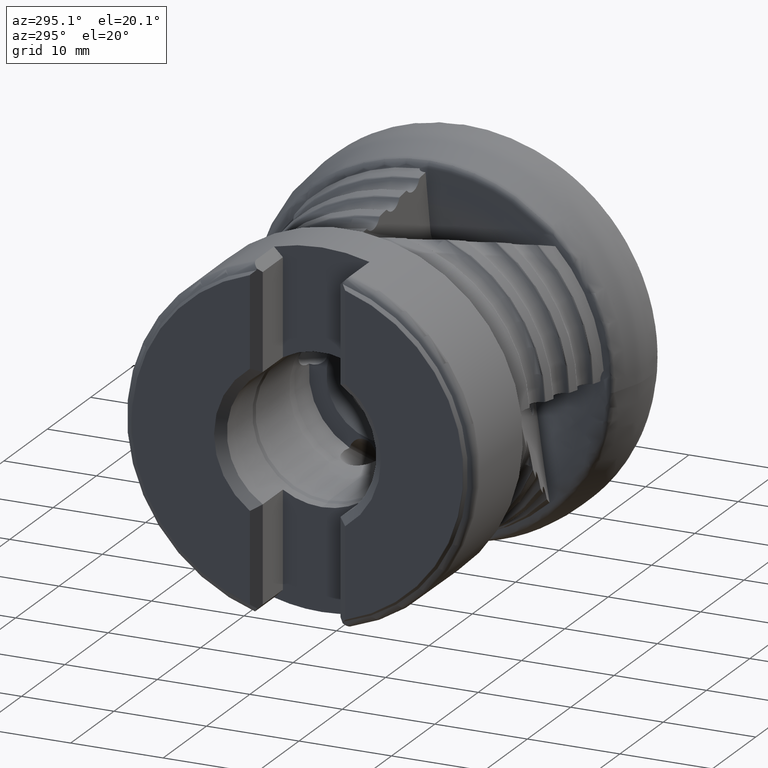
[diagram: clean part render]
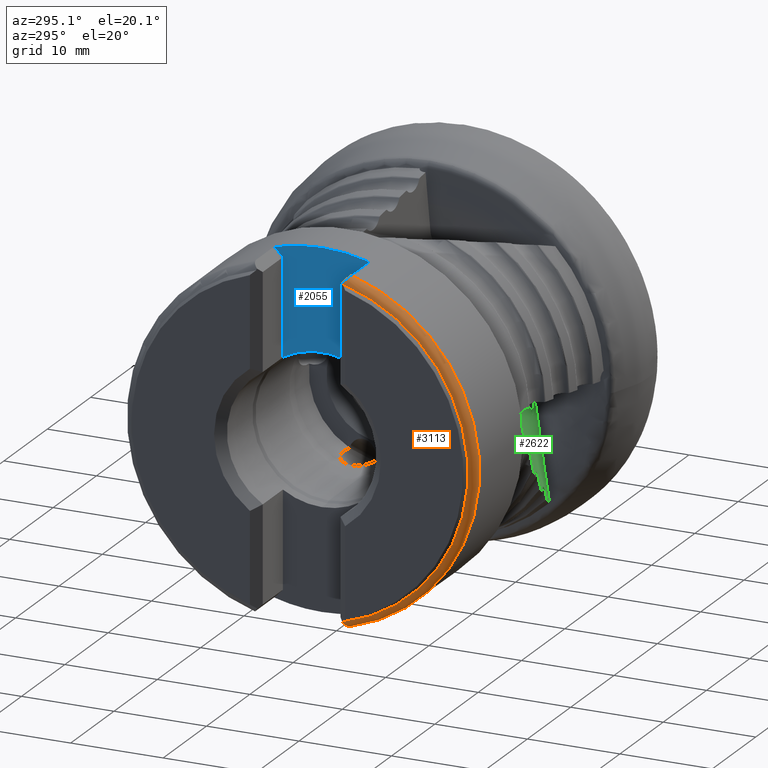
[diagram: same view with three faces highlighted in distinct colors, each labeled with its STEP entity id]
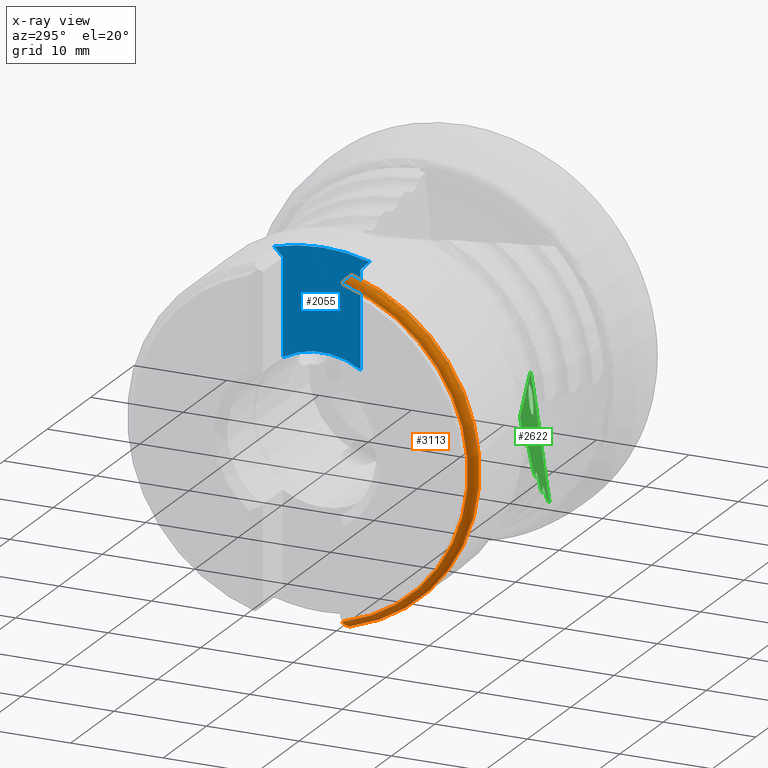
[diagram: x-ray of the same camera — body ghosted, the three highlighted faces saturated]
A machine part, auxiliary view with three faces highlighted in distinct colors.
The next image is the same camera in x-ray (body ghosted, the three faces saturated) — at least one of them is partly hidden behind the body in this view.
Their STEP definitions:

[orange] entity #3113 — the highlighted toroidal blend (fillet) surface has major radius 18 mm and minor (blend) radius 1 mm.
#468 = CARTESIAN_POINT ( 'NONE',  ( -38.05469920655795600, -5.048530082540030300, -18.18117357655765400 ) ) ;
#506 = CARTESIAN_POINT ( 'NONE',  ( -38.48385936006484100, -4.633859360064851000, -17.76317287354032000 ) ) ;
#673 = CIRCLE ( 'NONE', #7868, 18.99999999999999300 ) ;
#858 = CARTESIAN_POINT ( 'NONE',  ( -38.48385936006481200, -4.633859360064824400, 17.76317287354040200 ) ) ;
#1018 = EDGE_CURVE ( 'NONE', #3574, #2367, #3437, .T. ) ;
#1098 = CARTESIAN_POINT ( 'NONE',  ( -37.76384815131154900, -5.139883962065202800, -18.27326106620954600 ) ) ;
#1138 = CARTESIAN_POINT ( 'NONE',  ( -38.51757395159036400, -4.667573951590378000, -17.65174767903679900 ) ) ;
#1219 = VERTEX_POINT ( 'NONE', #7953 ) ;
#1249 = EDGE_CURVE ( 'NONE', #1219, #6208, #8019, .T. ) ;
#1491 = CARTESIAN_POINT ( 'NONE',  ( -38.48385936006481200, -4.633859360064824400, 17.76317287354040200 ) ) ;
#1501 = CARTESIAN_POINT ( 'NONE',  ( -38.52876197310683200, -4.678761973106848200, 17.59349912322756600 ) ) ;
#1675 = DIRECTION ( 'NONE',  ( 1.000000000000000000, -0.0000000000000000000, -0.0000000000000000000 ) ) ;
#1735 = CARTESIAN_POINT ( 'NONE',  ( -37.54999999999999000, -5.154084291463735900, -18.28757543023368000 ) ) ;
#1792 = B_SPLINE_CURVE_WITH_KNOTS ( 'NONE', 3,
 ( #7330, #2968, #3586, #7944, #4210, #468, #4836, #1098, #5469, #1735 ),
 .UNSPECIFIED., .F., .F.,
 ( 4, 2, 2, 2, 4 ),
 ( 8.673617379884034500E-019, 0.0003165693517978836800, 0.0006331387035957665000, 0.0009497080553936493700, 0.001266277407191532100 ),
 .UNSPECIFIED. ) ;
#1870 = EDGE_CURVE ( 'NONE', #3574, #6208, #6775, .T. ) ;
#2089 = DIRECTION ( 'NONE',  ( 1.000000000000000000, -0.0000000000000000000, -0.0000000000000000000 ) ) ;
#2144 = CARTESIAN_POINT ( 'NONE',  ( -37.54999999999999000, 0.0000000000000000000, 0.0000000000000000000 ) ) ;
#2220 = CARTESIAN_POINT ( 'NONE',  ( -38.29914039232142600, -4.905996709428838400, 18.03749560043177200 ) ) ;
#2367 = VERTEX_POINT ( 'NONE', #1491 ) ;
#2493 = AXIS2_PLACEMENT_3D ( 'NONE', #5399, #1675, #6039 ) ;
#2629 = B_SPLINE_CURVE_WITH_KNOTS ( 'NONE', 3,
 ( #4669, #5317, #5956, #2220, #6591, #2855 ),
 .UNSPECIFIED., .F., .F.,
 ( 4, 2, 4 ),
 ( 0.0000000000000000000, 0.0006327907338325851300, 0.001265581467665170300 ),
 .UNSPECIFIED. ) ;
#2777 = DIRECTION ( 'NONE',  ( 0.0000000000000000000, 0.0000000000000000000, -1.000000000000000000 ) ) ;
#2855 = CARTESIAN_POINT ( 'NONE',  ( -38.48385936006481200, -4.633859360064824400, 17.76317287354040200 ) ) ;
#2968 = CARTESIAN_POINT ( 'NONE',  ( -38.45024981219128100, -4.705336416484899000, -17.83522392082632600 ) ) ;
#2973 = EDGE_CURVE ( 'NONE', #4934, #3805, #673, .T. ) ;
#3058 = ORIENTED_EDGE ( 'NONE', *, *, #1018, .F. ) ;
#3068 = EDGE_CURVE ( 'NONE', #1219, #3805, #1792, .T. ) ;
#3113 = ADVANCED_FACE ( 'Fl�che5', ( #6937 ), #3612, .T. ) ;
#3222 = EDGE_CURVE ( 'NONE', #4934, #2367, #2629, .T. ) ;
#3437 = B_SPLINE_CURVE_WITH_KNOTS ( 'NONE', 3,
 ( #6468, #3983, #4605, #858 ),
 .UNSPECIFIED., .F., .F.,
 ( 4, 4 ),
 ( 0.001372400753466143000, 0.001552639090064840800 ),
 .UNSPECIFIED. ) ;
#3547 = AXIS2_PLACEMENT_3D ( 'NONE', #7078, #2089, #7693 ) ;
#3574 = VERTEX_POINT ( 'NONE', #1501 ) ;
#3586 = CARTESIAN_POINT ( 'NONE',  ( -38.40472224844603500, -4.772432079247459500, -17.90285839001865000 ) ) ;
#3612 = TOROIDAL_SURFACE ( 'NONE', #3547, 17.99999999999999600, 0.9999999999999974500 ) ;
#3805 = VERTEX_POINT ( 'NONE', #6090 ) ;
#3983 = CARTESIAN_POINT ( 'NONE',  ( -38.51749371846307900, -4.667493718463092000, 17.65216539934463200 ) ) ;
#4045 = ORIENTED_EDGE ( 'NONE', *, *, #3222, .T. ) ;
#4210 = CARTESIAN_POINT ( 'NONE',  ( -38.21677240891903400, -4.953890980019086700, -18.08577448218575500 ) ) ;
#4283 = ORIENTED_EDGE ( 'NONE', *, *, #1870, .T. ) ;
#4605 = CARTESIAN_POINT ( 'NONE',  ( -38.50218209336419800, -4.652182093364219300, 17.70894815240613300 ) ) ;
#4669 = CARTESIAN_POINT ( 'NONE',  ( -37.54999999999999000, -5.154084291463731500, 18.28757543023368400 ) ) ;
#4751 = ORIENTED_EDGE ( 'NONE', *, *, #2973, .F. ) ;
#4836 = CARTESIAN_POINT ( 'NONE',  ( -37.96101930603809600, -5.087606744889878700, -18.22056404096349900 ) ) ;
#4879 = CARTESIAN_POINT ( 'NONE',  ( -38.50242642143783200, -4.652426421437847500, -17.70822508224822300 ) ) ;
#4934 = VERTEX_POINT ( 'NONE', #5725 ) ;
#5250 = ORIENTED_EDGE ( 'NONE', *, *, #3068, .T. ) ;
#5317 = CARTESIAN_POINT ( 'NONE',  ( -37.76415761276612700, -5.154084291463736800, 18.28757543023367700 ) ) ;
#5399 = CARTESIAN_POINT ( 'NONE',  ( -38.52876197310683200, 0.0000000000000000000, 0.0000000000000000000 ) ) ;
#5469 = CARTESIAN_POINT ( 'NONE',  ( -37.65735244124207500, -5.154084291463807000, -18.28757543023375100 ) ) ;
#5507 = CARTESIAN_POINT ( 'NONE',  ( -38.52876197310683200, -4.678761973106847300, -17.59349912322756600 ) ) ;
#5691 = CARTESIAN_POINT ( 'NONE',  ( -38.52876197310683200, -4.678761973106847300, -17.59349912322756600 ) ) ;
#5725 = CARTESIAN_POINT ( 'NONE',  ( -37.54999999999999000, -5.154084291463731500, 18.28757543023368400 ) ) ;
#5956 = CARTESIAN_POINT ( 'NONE',  ( -37.97070616721687500, -5.097372263158278300, 18.23040798045639100 ) ) ;
#6039 = DIRECTION ( 'NONE',  ( 0.0000000000000000000, 0.0000000000000000000, -1.000000000000000000 ) ) ;
#6090 = CARTESIAN_POINT ( 'NONE',  ( -37.54999999999999000, -5.154084291463735900, -18.28757543023368000 ) ) ;
#6208 = VERTEX_POINT ( 'NONE', #5691 ) ;
#6468 = CARTESIAN_POINT ( 'NONE',  ( -38.52876197310683200, -4.678761973106848200, 17.59349912322756600 ) ) ;
#6505 = DIRECTION ( 'NONE',  ( 1.000000000000000000, -0.0000000000000000000, -0.0000000000000000000 ) ) ;
#6591 = CARTESIAN_POINT ( 'NONE',  ( -38.41673218027916200, -4.776617996238919700, 17.90707792168646900 ) ) ;
#6775 = CIRCLE ( 'NONE', #2493, 18.20499999999999500 ) ;
#6937 = FACE_OUTER_BOUND ( 'NONE', #6992, .T. ) ;
#6992 = EDGE_LOOP ( 'NONE', ( #4751, #4045, #3058, #4283, #8036, #5250 ) ) ;
#7078 = CARTESIAN_POINT ( 'NONE',  ( -37.54999999999999000, 0.0000000000000000000, 0.0000000000000000000 ) ) ;
#7330 = CARTESIAN_POINT ( 'NONE',  ( -38.48385936006484100, -4.633859360064851000, -17.76317287354032000 ) ) ;
#7693 = DIRECTION ( 'NONE',  ( 0.0000000000000000000, 0.0000000000000000000, -1.000000000000000000 ) ) ;
#7868 = AXIS2_PLACEMENT_3D ( 'NONE', #2144, #6505, #2777 ) ;
#7944 = CARTESIAN_POINT ( 'NONE',  ( -38.28788730391736600, -4.897146027994828000, -18.02857384429833600 ) ) ;
#7953 = CARTESIAN_POINT ( 'NONE',  ( -38.48385936006484100, -4.633859360064851000, -17.76317287354032000 ) ) ;
#8019 = B_SPLINE_CURVE_WITH_KNOTS ( 'NONE', 3,
 ( #506, #4879, #1138, #5507 ),
 .UNSPECIFIED., .F., .F.,
 ( 4, 4 ),
 ( 0.0009228124973433809600, 0.001103267274029202500 ),
 .UNSPECIFIED. ) ;
#8036 = ORIENTED_EDGE ( 'NONE', *, *, #1249, .F. ) ;

[blue] entity #2055 — the highlighted planar face has unit normal (1, 0, 0).
#7 = VECTOR ( 'NONE', #1830, 1000.000000000000000 ) ;
#63 = VERTEX_POINT ( 'NONE', #7376 ) ;
#170 = CIRCLE ( 'NONE', #5270, 8.074999999999994000 ) ;
#342 = VERTEX_POINT ( 'NONE', #1288 ) ;
#616 = PLANE ( 'NONE',  #1924 ) ;
#634 = EDGE_LOOP ( 'NONE', ( #3234, #7002, #6773, #3827, #3407, #5529 ) ) ;
#737 = VECTOR ( 'NONE', #6998, 1000.000000000000000 ) ;
#867 = VECTOR ( 'NONE', #5103, 1000.000000000000000 ) ;
#1189 = CARTESIAN_POINT ( 'NONE',  ( -33.39999999999999900, 4.199999999999995700, -35.00000000000000000 ) ) ;
#1252 = DIRECTION ( 'NONE',  ( 0.0000000000000000000, 0.0000000000000000000, -1.000000000000000000 ) ) ;
#1288 = CARTESIAN_POINT ( 'NONE',  ( -33.39999999999999900, -4.200000000000003700, 17.32582944009231000 ) ) ;
#1297 = EDGE_CURVE ( 'NONE', #5306, #5394, #2974, .T. ) ;
#1336 = CARTESIAN_POINT ( 'NONE',  ( -33.39999999999999900, -4.200000000000003700, -35.00000000000000000 ) ) ;
#1344 = CIRCLE ( 'NONE', #3477, 18.99999999999999600 ) ;
#1463 = DIRECTION ( 'NONE',  ( -1.000000000000000000, -0.0000000000000000000, -0.0000000000000000000 ) ) ;
#1710 = DIRECTION ( 'NONE',  ( -0.0000000000000000000, -0.7042733211068721300, 0.7099289324834540100 ) ) ;
#1814 = DIRECTION ( 'NONE',  ( -1.000000000000000000, -0.0000000000000000000, -0.0000000000000000000 ) ) ;
#1830 = DIRECTION ( 'NONE',  ( -0.0000000000000000000, -0.0000000000000000000, 1.000000000000000000 ) ) ;
#1924 = AXIS2_PLACEMENT_3D ( 'NONE', #4349, #4989, #1252 ) ;
#2055 = ADVANCED_FACE ( 'NONE', ( #2081 ), #616, .F. ) ;
#2081 = FACE_OUTER_BOUND ( 'NONE', #634, .T. ) ;
#2903 = CARTESIAN_POINT ( 'NONE',  ( -33.39999999999999900, 4.199999999999995700, 17.32582944009231000 ) ) ;
#2974 = LINE ( 'NONE', #1189, #7 ) ;
#3234 = ORIENTED_EDGE ( 'NONE', *, *, #6622, .T. ) ;
#3407 = ORIENTED_EDGE ( 'NONE', *, *, #4477, .T. ) ;
#3477 = AXIS2_PLACEMENT_3D ( 'NONE', #5544, #1814, #6175 ) ;
#3827 = ORIENTED_EDGE ( 'NONE', *, *, #5000, .F. ) ;
#4027 = VERTEX_POINT ( 'NONE', #6318 ) ;
#4216 = CARTESIAN_POINT ( 'NONE',  ( -33.39999999999999900, 4.199999999999995700, 6.896783670668519900 ) ) ;
#4266 = LINE ( 'NONE', #5109, #737 ) ;
#4349 = CARTESIAN_POINT ( 'NONE',  ( -33.39999999999999900, 4.199999999999995700, -35.00000000000000000 ) ) ;
#4477 = EDGE_CURVE ( 'NONE', #4027, #342, #6068, .T. ) ;
#4657 = LINE ( 'NONE', #4808, #6133 ) ;
#4808 = CARTESIAN_POINT ( 'NONE',  ( -33.39999999999999900, 26.12848552553696300, -13.24620659720213900 ) ) ;
#4989 = DIRECTION ( 'NONE',  ( 1.000000000000000000, 0.0000000000000000000, 0.0000000000000000000 ) ) ;
#5000 = EDGE_CURVE ( 'NONE', #4027, #5306, #170, .T. ) ;
#5103 = DIRECTION ( 'NONE',  ( -0.0000000000000000000, -0.0000000000000000000, 1.000000000000000000 ) ) ;
#5109 = CARTESIAN_POINT ( 'NONE',  ( -33.39999999999999900, -21.96207787462457600, -9.046340938150320800 ) ) ;
#5199 = CARTESIAN_POINT ( 'NONE',  ( -33.39999999999999900, 0.0000000000000000000, 0.0000000000000000000 ) ) ;
#5270 = AXIS2_PLACEMENT_3D ( 'NONE', #5199, #1463, #5826 ) ;
#5306 = VERTEX_POINT ( 'NONE', #4216 ) ;
#5394 = VERTEX_POINT ( 'NONE', #2903 ) ;
#5529 = ORIENTED_EDGE ( 'NONE', *, *, #7668, .T. ) ;
#5544 = CARTESIAN_POINT ( 'NONE',  ( -33.39999999999999900, 0.0000000000000000000, 0.0000000000000000000 ) ) ;
#5826 = DIRECTION ( 'NONE',  ( 0.0000000000000000000, 0.0000000000000000000, -1.000000000000000000 ) ) ;
#5918 = VERTEX_POINT ( 'NONE', #6024 ) ;
#6024 = CARTESIAN_POINT ( 'NONE',  ( -33.39999999999999900, 5.154084291463730600, 18.28757543023368400 ) ) ;
#6068 = LINE ( 'NONE', #1336, #867 ) ;
#6133 = VECTOR ( 'NONE', #1710, 1000.000000000000000 ) ;
#6175 = DIRECTION ( 'NONE',  ( 0.0000000000000000000, 2.664535259100375700E-015, -1.000000000000000000 ) ) ;
#6318 = CARTESIAN_POINT ( 'NONE',  ( -33.39999999999999900, -4.200000000000003700, 6.896783670668524400 ) ) ;
#6622 = EDGE_CURVE ( 'NONE', #63, #5918, #1344, .T. ) ;
#6773 = ORIENTED_EDGE ( 'NONE', *, *, #1297, .F. ) ;
#6998 = DIRECTION ( 'NONE',  ( 0.0000000000000000000, -0.7042733211068721300, -0.7099289324834540100 ) ) ;
#7002 = ORIENTED_EDGE ( 'NONE', *, *, #7876, .T. ) ;
#7376 = CARTESIAN_POINT ( 'NONE',  ( -33.39999999999999900, -5.154084291463734100, 18.28757543023368400 ) ) ;
#7668 = EDGE_CURVE ( 'NONE', #342, #63, #4657, .T. ) ;
#7876 = EDGE_CURVE ( 'NONE', #5918, #5394, #4266, .T. ) ;

[green] entity #2622 — the highlighted planar face has unit normal (-0.3701, 0.9171, -0.1482).
#26 = VERTEX_POINT ( 'NONE', #4314 ) ;
#40 = CARTESIAN_POINT ( 'NONE',  ( -13.06158693701320800, -12.92268450524517800, -1.970968657809498300 ) ) ;
#41 = CARTESIAN_POINT ( 'NONE',  ( -14.66772490443805500, -14.86115842577532400, -9.955975114109019600 ) ) ;
#49 = ORIENTED_EDGE ( 'NONE', *, *, #4861, .T. ) ;
#84 = CARTESIAN_POINT ( 'NONE',  ( -8.288258915872159300, -11.84682265361578900, -7.234380996124214900 ) ) ;
#105 = CARTESIAN_POINT ( 'NONE',  ( -8.816708944776047800, -12.89553216135156300, -12.40456871845629500 ) ) ;
#118 = CARTESIAN_POINT ( 'NONE',  ( -12.91318140703387300, -14.29622951480864000, -10.84187413756024100 ) ) ;
#136 = B_SPLINE_CURVE_WITH_KNOTS ( 'NONE', 3,
 ( #7932, #3576, #5484, #1755, #6116, #2381 ),
 .UNSPECIFIED., .F., .F.,
 ( 4, 2, 4 ),
 ( 1.009385445317449800E-006, 0.0001790251860066521100, 0.0003570409865679867400 ),
 .UNSPECIFIED. ) ;
#142 = CARTESIAN_POINT ( 'NONE',  ( -13.22327839975838000, -14.45316567490736400, -11.03861145808201600 ) ) ;
#195 = CARTESIAN_POINT ( 'NONE',  ( -9.400780168825525300, -13.29260878131742600, -13.40317490013187300 ) ) ;
#206 = CARTESIAN_POINT ( 'NONE',  ( -21.29843594468996000, -16.46248450411902600, -3.305591381325564200 ) ) ;
#246 = CARTESIAN_POINT ( 'NONE',  ( -20.81635518232234000, -16.21085633468090100, -2.952378746493181400 ) ) ;
#288 =( BOUNDED_CURVE ( )  B_SPLINE_CURVE ( 3, ( #3951, #7681, #195, #4574 ),
 .UNSPECIFIED., .F., .F. ) 
 B_SPLINE_CURVE_WITH_KNOTS ( ( 4, 4 ),
 ( 3.735590182268710100, 3.776112978296926000 ),
 .UNSPECIFIED. ) 
 CURVE ( )  GEOMETRIC_REPRESENTATION_ITEM ( )  RATIONAL_B_SPLINE_CURVE ( ( 1.000000000000000000, 0.9998631632648338200, 0.9998631632648338200, 1.000000000000000000 ) ) 
 REPRESENTATION_ITEM ( '' )  );
#339 = EDGE_CURVE ( 'NONE', #7672, #7672, #1480, .T. ) ;
#380 = CARTESIAN_POINT ( 'NONE',  ( -19.13913375411725700, -15.84146325940005800, -4.855249536368962300 ) ) ;
#391 = EDGE_CURVE ( 'NONE', #8012, #1737, #6702, .T. ) ;
#400 = DIRECTION ( 'NONE',  ( -0.9289711258367763200, -0.3644075289595948300, 0.06495998921732015800 ) ) ;
#410 = CARTESIAN_POINT ( 'NONE',  ( -19.90765923399761700, -15.91690120136515500, -3.402699866112887800 ) ) ;
#472 = B_SPLINE_CURVE_WITH_KNOTS ( 'NONE', 3,
 ( #4416, #41, #678, #5052, #1315, #5685 ),
 .UNSPECIFIED., .F., .F.,
 ( 4, 2, 4 ),
 ( 7.660069956780811300E-007, 0.0001434554477277806500, 0.0002861448884598832500 ),
 .UNSPECIFIED. ) ;
#539 = ORIENTED_EDGE ( 'NONE', *, *, #4907, .T. ) ;
#551 = CARTESIAN_POINT ( 'NONE',  ( -17.30936546724134900, -15.59704177608160300, -7.912501698183001900 ) ) ;
#572 = B_SPLINE_CURVE_WITH_KNOTS ( 'NONE', 3,
 ( #3848, #7580, #4465, #724, #5101, #1365, #5736, #2001, #6354, #2623, #6993, #3252, #7606, #3874, #118, #4492, #749, #5126 ),
 .UNSPECIFIED., .F., .F.,
 ( 4, 2, 2, 2, 2, 2, 2, 2, 4 ),
 ( 6.599408178951992300E-007, 0.0008750545435202486700, 0.001312251844871429100, 0.001749449146222609900, 0.002186646447573790100, 0.002623843748924970500, 0.003061041050276151300, 0.003279639700951744600, 0.003498238351627337400 ),
 .UNSPECIFIED. ) ;
#638 = CARTESIAN_POINT ( 'NONE',  ( -17.19709416919315000, -15.55931499123076000, -7.959426277079478100 ) ) ;
#678 = CARTESIAN_POINT ( 'NONE',  ( -14.64960026260332200, -14.86095276633301400, -9.999968890153230200 ) ) ;
#684 = CARTESIAN_POINT ( 'NONE',  ( -20.63402473574291900, -16.12792108531301600, -2.894501755574767600 ) ) ;
#707 = CARTESIAN_POINT ( 'NONE',  ( -15.17087802722921800, -14.86645942450824100, -8.732149664370126600 ) ) ;
#713 = CARTESIAN_POINT ( 'NONE',  ( -8.488526323792669400, -12.08101510600923800, -8.183523955575198600 ) ) ;
#724 = CARTESIAN_POINT ( 'NONE',  ( -11.13168738374282400, -13.70598606121352800, -11.63842194671495100 ) ) ;
#734 = CARTESIAN_POINT ( 'NONE',  ( -8.810491812418382200, -13.10623262769537700, -13.72402781966980900 ) ) ;
#749 = CARTESIAN_POINT ( 'NONE',  ( -13.08132523932028400, -14.38244314028242200, -10.95547078414291400 ) ) ;
#777 = CARTESIAN_POINT ( 'NONE',  ( -13.19131643344670500, -14.43999923359445200, -11.03695558779214300 ) ) ;
#803 = ORIENTED_EDGE ( 'NONE', *, *, #339, .F. ) ;
#810 = VERTEX_POINT ( 'NONE', #3820 ) ;
#884 = CARTESIAN_POINT ( 'NONE',  ( -20.34583694661682100, -16.02411487756086600, -2.971843646757779600 ) ) ;
#915 = EDGE_CURVE ( 'NONE', #5622, #4445, #7782, .T. ) ;
#943 = CARTESIAN_POINT ( 'NONE',  ( -8.810491812418382200, -13.10623262769537700, -13.72402781966980900 ) ) ;
#984 = CARTESIAN_POINT ( 'NONE',  ( -20.03731116525342800, -15.94339270905019400, -3.242836799181285600 ) ) ;
#1037 = CARTESIAN_POINT ( 'NONE',  ( -23.01391749765082300, -16.55933656196130200, 0.3794700127191610300 ) ) ;
#1090 = DIRECTION ( 'NONE',  ( 0.005572156574991161400, 0.1617080558032535400, 0.9868229100296747000 ) ) ;
#1160 = VERTEX_POINT ( 'NONE', #6063 ) ;
#1193 = LINE ( 'NONE', #1037, #5981 ) ;
#1209 = ORIENTED_EDGE ( 'NONE', *, *, #3457, .F. ) ;
#1214 = ORIENTED_EDGE ( 'NONE', *, *, #1564, .T. ) ;
#1278 = CARTESIAN_POINT ( 'NONE',  ( -17.17436061507838800, -15.54929042406291700, -7.954166001889202400 ) ) ;
#1303 = CARTESIAN_POINT ( 'NONE',  ( -14.53201490601522200, -14.83732247978159400, -10.14740237023979900 ) ) ;
#1315 = CARTESIAN_POINT ( 'NONE',  ( -14.57033120078480900, -14.84827763673981900, -10.11950357058552900 ) ) ;
#1342 = CARTESIAN_POINT ( 'NONE',  ( -15.66597922763245200, -14.96449941607279800, -8.102354483617869400 ) ) ;
#1349 = CARTESIAN_POINT ( 'NONE',  ( -8.590104201229129500, -12.19864741339509000, -8.657806163384423200 ) ) ;
#1365 = CARTESIAN_POINT ( 'NONE',  ( -11.41068289237418700, -13.76430323911134800, -11.30252645579653900 ) ) ;
#1373 = VERTEX_POINT ( 'NONE', #6877 ) ;
#1416 = CARTESIAN_POINT ( 'NONE',  ( -13.16111581070185100, -14.42598205127919200, -11.02563588199462400 ) ) ;
#1462 = CARTESIAN_POINT ( 'NONE',  ( -10.53201490601522600, -13.64395386577984200, -12.75222143156462100 ) ) ;
#1479 = CARTESIAN_POINT ( 'NONE',  ( -21.25858763557420900, -16.45395380356756100, -3.352320290677335700 ) ) ;
#1480 =( BOUNDED_CURVE ( )  B_SPLINE_CURVE ( 3, ( #4387, #1923, #6913, #3169, #7530, #3796, #40 ),
 .UNSPECIFIED., .T., .F. ) 
 B_SPLINE_CURVE_WITH_KNOTS ( ( 4, 3, 4 ),
 ( 0.0000000000000000000, 3.141592653589793100, 6.283185307179586200 ),
 .UNSPECIFIED. ) 
 CURVE ( )  GEOMETRIC_REPRESENTATION_ITEM ( )  RATIONAL_B_SPLINE_CURVE ( ( 1.000000000000000000, 0.3333333333333333700, 0.3333333333333333700, 1.000000000000000000, 0.3333333333333333700, 0.3333333333333333700, 1.000000000000000000 ) ) 
 REPRESENTATION_ITEM ( '' )  );
#1564 = EDGE_CURVE ( 'NONE', #4337, #2245, #1637, .T. ) ;
#1637 = B_SPLINE_CURVE_WITH_KNOTS ( 'NONE', 3,
 ( #5198, #7059, #4562, #1462 ),
 .UNSPECIFIED., .F., .F.,
 ( 4, 4 ),
 ( 6.616937307723633600E-007, 0.0002552861046104720500 ),
 .UNSPECIFIED. ) ;
#1663 = B_SPLINE_CURVE_WITH_KNOTS ( 'NONE', 3,
 ( #5056, #2578, #4446, #707, #5085, #1342, #5717, #1980, #6336, #2602, #6974, #3229, #7586, #3858 ),
 .UNSPECIFIED., .F., .F.,
 ( 4, 2, 2, 2, 2, 2, 4 ),
 ( 7.641823690654898600E-007, 0.0009570944499425659700, 0.001913424717516066500, 0.002391589851302815100, 0.002869754985089563300, 0.003347920118876311900, 0.003826085252663060500 ),
 .UNSPECIFIED. ) ;
#1737 = VERTEX_POINT ( 'NONE', #5353 ) ;
#1745 = PLANE ( 'NONE',  #7204 ) ;
#1755 = CARTESIAN_POINT ( 'NONE',  ( -18.60408194009716000, -15.91598928009826600, -6.652756370502071800 ) ) ;
#1876 = EDGE_CURVE ( 'NONE', #6716, #4619, #1193, .T. ) ;
#1913 = CARTESIAN_POINT ( 'NONE',  ( -17.15371709882603200, -15.53911674669765100, -7.942763055103084100 ) ) ;
#1923 = CARTESIAN_POINT ( 'NONE',  ( -13.41614850462555700, -13.53680315476099900, -4.885954829147042500 ) ) ;
#1980 = CARTESIAN_POINT ( 'NONE',  ( -16.03359010365454300, -15.06469262381848800, -7.804293222382667300 ) ) ;
#1988 = CARTESIAN_POINT ( 'NONE',  ( -8.725860170575972000, -12.38225093524192900, -9.454994762668709600 ) ) ;
#2001 = CARTESIAN_POINT ( 'NONE',  ( -11.73793910005533400, -13.85068999614679600, -11.01980946429039000 ) ) ;
#2024 = CARTESIAN_POINT ( 'NONE',  ( -13.27426063369093400, -14.47166853765687500, -11.02578872658311200 ) ) ;
#2052 = CARTESIAN_POINT ( 'NONE',  ( -13.13975833526404800, -14.41524855921950300, -11.01255161200694100 ) ) ;
#2113 = CARTESIAN_POINT ( 'NONE',  ( -21.20542192611806300, -16.43686889538136200, -3.379371370490081600 ) ) ;
#2245 = VERTEX_POINT ( 'NONE', #6347 ) ;
#2307 = CARTESIAN_POINT ( 'NONE',  ( -21.13077898559610900, -16.39758433423874400, -3.322678287010757200 ) ) ;
#2381 = CARTESIAN_POINT ( 'NONE',  ( -18.53201490601521700, -15.90244356617263200, -6.748916239662492000 ) ) ;
#2457 = CARTESIAN_POINT ( 'NONE',  ( -17.30936546724134900, -15.59704177608160300, -7.912501698183001900 ) ) ;
#2482 = CARTESIAN_POINT ( 'NONE',  ( -13.30936546724134200, -14.48249617549296000, -11.00512143068432500 ) ) ;
#2488 = CARTESIAN_POINT ( 'NONE',  ( -8.011410125360754400, -10.67430258438759000, -0.6696074989837840200 ) ) ;
#2534 = CARTESIAN_POINT ( 'NONE',  ( -17.13758421212001100, -15.53056543341423200, -7.930134848504502900 ) ) ;
#2559 = CARTESIAN_POINT ( 'NONE',  ( -13.72949393109026100, -14.60611917307294900, -10.72089343970425000 ) ) ;
#2574 = CARTESIAN_POINT ( 'NONE',  ( -13.13077898559615900, -14.41020738652653500, -11.00378006388950200 ) ) ;
#2578 = CARTESIAN_POINT ( 'NONE',  ( -14.76363208000690700, -14.84192507260523200, -9.597419096264353300 ) ) ;
#2602 = CARTESIAN_POINT ( 'NONE',  ( -16.46489362997587200, -15.21197692166836500, -7.638584671715032700 ) ) ;
#2608 = CARTESIAN_POINT ( 'NONE',  ( -8.807444171688482400, -12.57238777873546500, -10.42791033467685400 ) ) ;
#2622 = ADVANCED_FACE ( 'NONE', ( #5092, #4900 ), #1745, .F. ) ;
#2623 = CARTESIAN_POINT ( 'NONE',  ( -12.11173638994503300, -13.96877111651907700, -10.81699791773267600 ) ) ;
#2672 = CARTESIAN_POINT ( 'NONE',  ( -21.02838886468428500, -16.32911191591469100, -3.154653417531426500 ) ) ;
#2683 = CARTESIAN_POINT ( 'NONE',  ( -19.29448734747943900, -15.84304427004149000, -4.477036240860520000 ) ) ;
#2694 = EDGE_CURVE ( 'NONE', #6472, #26, #2996, .T. ) ;
#2745 = CARTESIAN_POINT ( 'NONE',  ( -21.15222061911526200, -16.41163614290324100, -3.356087960936150200 ) ) ;
#2756 = ORIENTED_EDGE ( 'NONE', *, *, #6897, .T. ) ;
#2933 = LINE ( 'NONE', #3577, #6054 ) ;
#2978 = VERTEX_POINT ( 'NONE', #4620 ) ;
#2996 =( BOUNDED_CURVE ( )  B_SPLINE_CURVE ( 3, ( #7998, #3667, #4295, #551 ),
 .UNSPECIFIED., .F., .F. ) 
 B_SPLINE_CURVE_WITH_KNOTS ( ( 4, 4 ),
 ( 3.497770625844566000, 3.542646316126685200 ),
 .UNSPECIFIED. ) 
 CURVE ( )  GEOMETRIC_REPRESENTATION_ITEM ( )  RATIONAL_B_SPLINE_CURVE ( ( 1.000000000000000000, 0.9998321880758249700, 0.9998321880758249700, 1.000000000000000000 ) ) 
 REPRESENTATION_ITEM ( '' )  );
#3005 = DIRECTION ( 'NONE',  ( -0.9273309213448917000, -0.3742423844484136200, 0.0000000000000000000 ) ) ;
#3114 = CARTESIAN_POINT ( 'NONE',  ( -22.88578160818059000, -16.50907269309149700, 0.3705098784729798900 ) ) ;
#3124 = EDGE_CURVE ( 'NONE', #2978, #1737, #5528, .T. ) ;
#3131 = CARTESIAN_POINT ( 'NONE',  ( -17.26227178173996500, -15.58332128329708500, -7.945208699856436900 ) ) ;
#3142 = CARTESIAN_POINT ( 'NONE',  ( -22.06691627777239300, -16.57256498748131400, -2.067541790115719800 ) ) ;
#3147 = EDGE_LOOP ( 'NONE', ( #3479, #4146, #5357, #4867, #4833, #7687, #7926, #7931, #49, #5681, #3247, #539, #6554, #1209, #1214, #2756 ) ) ;
#3169 = CARTESIAN_POINT ( 'NONE',  ( -9.513363365466707600, -11.60531623801099600, -2.680091793034177000 ) ) ;
#3179 = CARTESIAN_POINT ( 'NONE',  ( -8.041309942292009800, -11.54201712179437100, -5.964832777807425000 ) ) ;
#3206 = CARTESIAN_POINT ( 'NONE',  ( -8.162586827985055700, -11.69361013992178800, -6.600084252255650900 ) ) ;
#3229 = CARTESIAN_POINT ( 'NONE',  ( -16.90559743029128700, -15.40277810294848500, -7.718705514963848400 ) ) ;
#3236 = CARTESIAN_POINT ( 'NONE',  ( -8.814410831328677500, -12.68154224647070500, -11.08601960803499900 ) ) ;
#3247 = ORIENTED_EDGE ( 'NONE', *, *, #4419, .T. ) ;
#3252 = CARTESIAN_POINT ( 'NONE',  ( -12.52008004756391600, -14.12084086135246600, -10.73824692446667400 ) ) ;
#3365 = CARTESIAN_POINT ( 'NONE',  ( -21.13077898559610900, -16.39758433423874400, -3.322678287010757200 ) ) ;
#3395 = EDGE_CURVE ( 'NONE', #4619, #2978, #3484, .T. ) ;
#3457 = EDGE_CURVE ( 'NONE', #4337, #4445, #572, .T. ) ;
#3479 = ORIENTED_EDGE ( 'NONE', *, *, #7417, .F. ) ;
#3484 =( BOUNDED_CURVE ( )  B_SPLINE_CURVE ( 3, ( #3114, #6862, #3142, #7501 ),
 .UNSPECIFIED., .F., .F. ) 
 B_SPLINE_CURVE_WITH_KNOTS ( ( 4, 4 ),
 ( 3.227657340640096800, 3.366057461264809500 ),
 .UNSPECIFIED. ) 
 CURVE ( )  GEOMETRIC_REPRESENTATION_ITEM ( )  RATIONAL_B_SPLINE_CURVE ( ( 1.000000000000000000, 0.9984044207590608800, 0.9984044207590608800, 1.000000000000000000 ) ) 
 REPRESENTATION_ITEM ( '' )  );
#3557 = CARTESIAN_POINT ( 'NONE',  ( -21.08270250875885000, -16.36417712487318400, -3.236007464220100900 ) ) ;
#3576 = CARTESIAN_POINT ( 'NONE',  ( -18.66838651152312400, -15.91511046310041500, -6.486716320795836500 ) ) ;
#3577 = CARTESIAN_POINT ( 'NONE',  ( -8.008089806552384000, -10.57794450616011500, -0.08158262484271523700 ) ) ;
#3667 = CARTESIAN_POINT ( 'NONE',  ( -18.14748850825838700, -15.81021528268055600, -7.138515603693987200 ) ) ;
#3755 = CARTESIAN_POINT ( 'NONE',  ( -17.23506606374748900, -15.57415713873224300, -7.956442481658760900 ) ) ;
#3796 = CARTESIAN_POINT ( 'NONE',  ( -12.70702536940086200, -12.30856585572935700, 0.9440175135280453000 ) ) ;
#3806 = EDGE_CURVE ( 'NONE', #810, #6716, #2933, .T. ) ;
#3820 = CARTESIAN_POINT ( 'NONE',  ( -8.041309942292009800, -11.54201712179437100, -5.964832777807425000 ) ) ;
#3848 = CARTESIAN_POINT ( 'NONE',  ( -10.68017554922010200, -13.67148018251402600, -12.55253660803584600 ) ) ;
#3858 = CARTESIAN_POINT ( 'NONE',  ( -17.13077898559625100, -15.52657029930583700, -7.922406870538840600 ) ) ;
#3862 = CARTESIAN_POINT ( 'NONE',  ( -8.815266109469424900, -12.76178604638697300, -11.58047682929561100 ) ) ;
#3874 = CARTESIAN_POINT ( 'NONE',  ( -12.85071666683739300, -14.26626950100696900, -10.81247134015593200 ) ) ;
#3900 = CARTESIAN_POINT ( 'NONE',  ( -13.23970001783192000, -14.45941331515073400, -11.03626214387359300 ) ) ;
#3911 = CARTESIAN_POINT ( 'NONE',  ( -19.67636646581144800, -15.87888885815114500, -3.745114805095091100 ) ) ;
#3951 = CARTESIAN_POINT ( 'NONE',  ( -10.53201490601522600, -13.64395386577984200, -12.75222143156462100 ) ) ;
#3964 = CARTESIAN_POINT ( 'NONE',  ( -14.53201490601522200, -14.83732247978159400, -10.14740237023979900 ) ) ;
#4146 = ORIENTED_EDGE ( 'NONE', *, *, #3806, .T. ) ;
#4260 =( BOUNDED_CURVE ( )  B_SPLINE_CURVE ( 3, ( #1303, #5038, #2559, #6931 ),
 .UNSPECIFIED., .F., .F. ) 
 B_SPLINE_CURVE_WITH_KNOTS ( ( 4, 4 ),
 ( 3.630230336012595600, 3.664467858714360600 ),
 .UNSPECIFIED. ) 
 CURVE ( )  GEOMETRIC_REPRESENTATION_ITEM ( )  RATIONAL_B_SPLINE_CURVE ( ( 1.000000000000000000, 0.9999023183887879600, 0.9999023183887879600, 1.000000000000000000 ) ) 
 REPRESENTATION_ITEM ( '' )  );
#4295 = CARTESIAN_POINT ( 'NONE',  ( -17.73987029213658700, -15.70839759976226300, -7.526442521963415900 ) ) ;
#4304 = B_SPLINE_CURVE_WITH_KNOTS ( 'NONE', 3,
 ( #3179, #3206, #84, #4451, #713, #5089, #1349, #5722, #1988, #6342, #2608, #6976, #3236, #7589, #3862, #105, #4478, #734 ),
 .UNSPECIFIED., .F., .F.,
 ( 4, 2, 2, 2, 2, 2, 2, 2, 4 ),
 ( 0.001847695782522838300, 0.003840317991102707100, 0.004338473543247674100, 0.004836629095392639400, 0.005832940199682575200, 0.006829251303972511800, 0.007327406856117477100, 0.007825562408262442400, 0.009818184616842308800 ),
 .UNSPECIFIED. ) ;
#4314 = CARTESIAN_POINT ( 'NONE',  ( -17.30936546724134900, -15.59704177608160300, -7.912501698183001900 ) ) ;
#4337 = VERTEX_POINT ( 'NONE', #4971 ) ;
#4375 = CARTESIAN_POINT ( 'NONE',  ( -17.20916204141616700, -15.56425635286004900, -7.959866516537834600 ) ) ;
#4387 = CARTESIAN_POINT ( 'NONE',  ( -13.06158693701320800, -12.92268450524517800, -1.970968657809498300 ) ) ;
#4416 = CARTESIAN_POINT ( 'NONE',  ( -14.68017554922010800, -14.85866155683024400, -9.909427464403224300 ) ) ;
#4419 = EDGE_CURVE ( 'NONE', #1373, #8091, #472, .T. ) ;
#4445 = VERTEX_POINT ( 'NONE', #2574 ) ;
#4446 = CARTESIAN_POINT ( 'NONE',  ( -14.87951648391162600, -14.84063886202624400, -9.300036615965293400 ) ) ;
#4451 = CARTESIAN_POINT ( 'NONE',  ( -8.454791375538224700, -12.04185049380065600, -8.025404979815581500 ) ) ;
#4463 = CARTESIAN_POINT ( 'NONE',  ( -13.30936546724134200, -14.48249617549296000, -11.00512143068432500 ) ) ;
#4465 = CARTESIAN_POINT ( 'NONE',  ( -10.89323141793812700, -13.66933410863232000, -12.00714591224059000 ) ) ;
#4478 = CARTESIAN_POINT ( 'NONE',  ( -8.814372895075196700, -13.00119797926820400, -13.06432191388166000 ) ) ;
#4492 = CARTESIAN_POINT ( 'NONE',  ( -13.02801870458214300, -14.35411003238927900, -10.91326345750119100 ) ) ;
#4499 = CARTESIAN_POINT ( 'NONE',  ( -19.84758016192424200, -15.90619244898136800, -3.486476352636506300 ) ) ;
#4516 = CARTESIAN_POINT ( 'NONE',  ( -13.20734118325097100, -14.44660048352365000, -11.03778579037870400 ) ) ;
#4518 = VERTEX_POINT ( 'NONE', #943 ) ;
#4562 = CARTESIAN_POINT ( 'NONE',  ( -10.60397292417693500, -13.66617207653550800, -12.71000406751437800 ) ) ;
#4574 = CARTESIAN_POINT ( 'NONE',  ( -8.810491812418382200, -13.10623262769537700, -13.72402781966980900 ) ) ;
#4588 = CARTESIAN_POINT ( 'NONE',  ( -21.30936546724134600, -16.46405009672247700, -3.287983525477708100 ) ) ;
#4619 = VERTEX_POINT ( 'NONE', #4766 ) ;
#4620 = CARTESIAN_POINT ( 'NONE',  ( -21.30936546724134600, -16.46405009672247700, -3.287983525477708100 ) ) ;
#4634 = CARTESIAN_POINT ( 'NONE',  ( -20.26132266330571600, -15.99954602802892000, -3.030873373285713200 ) ) ;
#4766 = CARTESIAN_POINT ( 'NONE',  ( -22.88578160818059000, -16.50907269309149700, 0.3705098784729798900 ) ) ;
#4816 = CARTESIAN_POINT ( 'NONE',  ( -8.008089806552385800, -10.57794450616011900, -0.08158262484271516800 ) ) ;
#4833 = ORIENTED_EDGE ( 'NONE', *, *, #3124, .T. ) ;
#4861 = EDGE_CURVE ( 'NONE', #26, #1160, #5714, .T. ) ;
#4867 = ORIENTED_EDGE ( 'NONE', *, *, #3395, .T. ) ;
#4900 = FACE_OUTER_BOUND ( 'NONE', #3147, .T. ) ;
#4907 = EDGE_CURVE ( 'NONE', #8091, #5622, #4260, .T. ) ;
#4971 = CARTESIAN_POINT ( 'NONE',  ( -10.68017554922010200, -13.67148018251402600, -12.55253660803584600 ) ) ;
#5013 = CARTESIAN_POINT ( 'NONE',  ( -17.18573323304922300, -15.55430528325067900, -7.956797491002540700 ) ) ;
#5038 = CARTESIAN_POINT ( 'NONE',  ( -14.13708355802635600, -14.72440616229951800, -10.43495915570117700 ) ) ;
#5052 = CARTESIAN_POINT ( 'NONE',  ( -14.60051698422190600, -14.85442860764413800, -10.08217984405812800 ) ) ;
#5056 = CARTESIAN_POINT ( 'NONE',  ( -14.68017554922010800, -14.85866155683024400, -9.909427464403224300 ) ) ;
#5085 = CARTESIAN_POINT ( 'NONE',  ( -15.34797549539630900, -14.89377479908168700, -8.458889344752574100 ) ) ;
#5089 = CARTESIAN_POINT ( 'NONE',  ( -8.556205574546796200, -12.15942204330132300, -8.499719972863749400 ) ) ;
#5092 = FACE_BOUND ( 'NONE', #7190, .T. ) ;
#5101 = CARTESIAN_POINT ( 'NONE',  ( -11.22005292887726400, -13.72257781485074300, -11.52040693886516100 ) ) ;
#5126 = CARTESIAN_POINT ( 'NONE',  ( -13.13077898559615900, -14.41020738652653500, -11.00378006388950200 ) ) ;
#5149 = CARTESIAN_POINT ( 'NONE',  ( -13.17533212897539100, -14.43287784252917700, -11.03280544969663900 ) ) ;
#5198 = CARTESIAN_POINT ( 'NONE',  ( -10.68017554922010200, -13.67148018251402600, -12.55253660803584600 ) ) ;
#5216 = CARTESIAN_POINT ( 'NONE',  ( -21.28649506188904900, -16.46036967368847600, -3.322326132249796800 ) ) ;
#5243 = CARTESIAN_POINT ( 'NONE',  ( -19.57434590858276700, -15.86710049507277300, -3.926959423808886300 ) ) ;
#5353 = CARTESIAN_POINT ( 'NONE',  ( -21.13077898559610900, -16.39758433423874400, -3.322678287010757200 ) ) ;
#5357 = ORIENTED_EDGE ( 'NONE', *, *, #1876, .T. ) ;
#5484 = CARTESIAN_POINT ( 'NONE',  ( -18.65130572985187700, -15.91741200697926900, -6.543619012901989300 ) ) ;
#5486 = EDGE_CURVE ( 'NONE', #8012, #6472, #136, .T. ) ;
#5528 = B_SPLINE_CURVE_WITH_KNOTS ( 'NONE', 3,
 ( #4588, #206, #5216, #1479, #5844, #2113, #6479, #2745, #7104, #3365 ),
 .UNSPECIFIED., .F., .F.,
 ( 4, 2, 2, 2, 4 ),
 ( 3.780116168258845100E-007, 6.231225267354247200E-005, 0.0001242464937302590700, 0.0001861807347869756600, 0.0002481149758436922200 ),
 .UNSPECIFIED. ) ;
#5622 = VERTEX_POINT ( 'NONE', #2482 ) ;
#5647 = CARTESIAN_POINT ( 'NONE',  ( -17.16342452843638000, -15.54408740462190200, -7.949279830171898100 ) ) ;
#5681 = ORIENTED_EDGE ( 'NONE', *, *, #7828, .F. ) ;
#5685 = CARTESIAN_POINT ( 'NONE',  ( -14.53201490601522200, -14.83732247978159400, -10.14740237023979900 ) ) ;
#5714 = B_SPLINE_CURVE_WITH_KNOTS ( 'NONE', 3,
 ( #2457, #6244, #6878, #3131, #7489, #3755, #8109, #4375, #638, #5013, #1278, #5647, #1913, #6268, #2534, #6904 ),
 .UNSPECIFIED., .F., .F.,
 ( 4, 3, 3, 3, 3, 4 ),
 ( 2.714096242870083600E-007, 5.922744285304422800E-005, 0.0001049900570591540100, 0.0001430413185133459400, 0.0001811299348350998000, 0.0002140613745921866800 ),
 .UNSPECIFIED. ) ;
#5717 = CARTESIAN_POINT ( 'NONE',  ( -15.78212134025388400, -14.99343411755791400, -7.991352194168913800 ) ) ;
#5722 = CARTESIAN_POINT ( 'NONE',  ( -8.679531335085910000, -12.31176933115372500, -9.134522198526141800 ) ) ;
#5736 = CARTESIAN_POINT ( 'NONE',  ( -11.51348871050810800, -13.78948127744899700, -11.20158340023855800 ) ) ;
#5765 = CARTESIAN_POINT ( 'NONE',  ( -18.68017554922010600, -15.91036775281562400, -6.427922526750605500 ) ) ;
#5784 = CARTESIAN_POINT ( 'NONE',  ( -13.15003258377678500, -14.42060600258775900, -11.02004639361464400 ) ) ;
#5844 = CARTESIAN_POINT ( 'NONE',  ( -21.24223515955135600, -16.44955094549776200, -3.365913460473915400 ) ) ;
#5981 = VECTOR ( 'NONE', #400, 1000.000000000000100 ) ;
#6054 = VECTOR ( 'NONE', #1090, 1000.000000000000100 ) ;
#6063 = CARTESIAN_POINT ( 'NONE',  ( -17.13077898559625100, -15.52657029930583700, -7.922406870538840600 ) ) ;
#6116 = CARTESIAN_POINT ( 'NONE',  ( -18.57407514339814700, -15.91253167330838100, -6.706301111465824000 ) ) ;
#6244 = CARTESIAN_POINT ( 'NONE',  ( -17.29499865382225100, -15.59332560788607400, -7.925385270805973500 ) ) ;
#6268 = CARTESIAN_POINT ( 'NONE',  ( -17.14527776796562700, -15.53479541463546300, -7.937097577921570700 ) ) ;
#6336 = CARTESIAN_POINT ( 'NONE',  ( -16.17222225042590400, -15.10798474370898400, -7.725973496810913100 ) ) ;
#6342 = CARTESIAN_POINT ( 'NONE',  ( -8.789628542460517800, -12.51249035568274700, -10.10172649695812900 ) ) ;
#6347 = CARTESIAN_POINT ( 'NONE',  ( -10.53201490601522600, -13.64395386577984200, -12.75222143156462100 ) ) ;
#6354 = CARTESIAN_POINT ( 'NONE',  ( -11.85784846045784100, -13.88627576502960200, -10.94055893447343800 ) ) ;
#6379 = CARTESIAN_POINT ( 'NONE',  ( -13.29256374717567200, -14.47755226148153800, -11.01648823762597700 ) ) ;
#6410 = CARTESIAN_POINT ( 'NONE',  ( -13.13077898559615900, -14.41020738652653500, -11.00378006388950200 ) ) ;
#6472 = VERTEX_POINT ( 'NONE', #7883 ) ;
#6479 = CARTESIAN_POINT ( 'NONE',  ( -21.18455002457840300, -16.42808330460888300, -3.377129070999448600 ) ) ;
#6504 = CARTESIAN_POINT ( 'NONE',  ( -18.87225594420714000, -15.85859729631003700, -5.627815033925441100 ) ) ;
#6550 = CARTESIAN_POINT ( 'NONE',  ( -20.10736086180216700, -15.95924466694614500, -3.165987575878385300 ) ) ;
#6554 = ORIENTED_EDGE ( 'NONE', *, *, #915, .T. ) ;
#6671 = CARTESIAN_POINT ( 'NONE',  ( -20.89567249955366900, -16.25257800129643100, -3.012479682772490500 ) ) ;
#6702 = B_SPLINE_CURVE_WITH_KNOTS ( 'NONE', 3,
 ( #7106, #7329, #6504, #380, #2683, #5243, #3911, #4499, #410, #984, #6550, #4634, #884, #7741, #684, #246, #6671, #2672, #3557, #2307 ),
 .UNSPECIFIED., .F., .F.,
 ( 4, 2, 2, 2, 2, 2, 2, 2, 2, 4 ),
 ( 1.005475735865516000E-006, 0.001226875316207939900, 0.002452745156680014100, 0.003065680076916052400, 0.003372147537034068500, 0.003678614997152085100, 0.003985082457270102000, 0.004291549917388118100, 0.004598017377506135100, 0.004904484837624151200 ),
 .UNSPECIFIED. ) ;
#6716 = VERTEX_POINT ( 'NONE', #2488 ) ;
#6740 = DIRECTION ( 'NONE',  ( -0.3701102517259635100, 0.9170919569628195300, -0.1481915788479562000 ) ) ;
#6862 = CARTESIAN_POINT ( 'NONE',  ( -22.59322809696510600, -16.58759650357936300, -0.8460950737743157000 ) ) ;
#6877 = CARTESIAN_POINT ( 'NONE',  ( -14.68017554922010800, -14.85866155683024400, -9.909427464403224300 ) ) ;
#6878 = CARTESIAN_POINT ( 'NONE',  ( -17.27918486050037900, -15.58879290305967700, -7.936829510085336100 ) ) ;
#6897 = EDGE_CURVE ( 'NONE', #2245, #4518, #288, .T. ) ;
#6904 = CARTESIAN_POINT ( 'NONE',  ( -17.13077898559625100, -15.52657029930583700, -7.922406870538840600 ) ) ;
#6913 = CARTESIAN_POINT ( 'NONE',  ( -9.867924933079054400, -12.21943488752681600, -5.595077964371720100 ) ) ;
#6931 = CARTESIAN_POINT ( 'NONE',  ( -13.30936546724134200, -14.48249617549296000, -11.00512143068432500 ) ) ;
#6974 = CARTESIAN_POINT ( 'NONE',  ( -16.62208510932874700, -15.27441731830206500, -7.632412981952035700 ) ) ;
#6976 = CARTESIAN_POINT ( 'NONE',  ( -8.815057132911981300, -12.65514004930463400, -10.92101397344408300 ) ) ;
#6993 = CARTESIAN_POINT ( 'NONE',  ( -12.24693641506314500, -14.01616141462979400, -10.77261176471676100 ) ) ;
#7059 = CARTESIAN_POINT ( 'NONE',  ( -10.65445672836794200, -13.67436471798562700, -12.63462078336369600 ) ) ;
#7104 = CARTESIAN_POINT ( 'NONE',  ( -21.14039251193736700, -16.40426454686428300, -3.340009262465030800 ) ) ;
#7105 = CARTESIAN_POINT ( 'NONE',  ( -13.06158693701320800, -12.92268450524517800, -1.970968657809498300 ) ) ;
#7106 = CARTESIAN_POINT ( 'NONE',  ( -18.68017554922010600, -15.91036775281562400, -6.427922526750605500 ) ) ;
#7190 = EDGE_LOOP ( 'NONE', ( #803 ) ) ;
#7204 = AXIS2_PLACEMENT_3D ( 'NONE', #4816, #6740, #3005 ) ;
#7329 = CARTESIAN_POINT ( 'NONE',  ( -18.76148030179823300, -15.87765898589451800, -6.022442876855142100 ) ) ;
#7417 = EDGE_CURVE ( 'NONE', #810, #4518, #4304, .T. ) ;
#7489 = CARTESIAN_POINT ( 'NONE',  ( -17.24914672571133100, -15.57907514236859300, -7.951711202255804500 ) ) ;
#7501 = CARTESIAN_POINT ( 'NONE',  ( -21.30936546724134600, -16.46405009672247700, -3.287983525477708100 ) ) ;
#7530 = CARTESIAN_POINT ( 'NONE',  ( -9.158801797854359000, -10.99119758849517600, 0.2348943783033667600 ) ) ;
#7580 = CARTESIAN_POINT ( 'NONE',  ( -10.76853488615283400, -13.66157009981253800, -12.27052899398805300 ) ) ;
#7586 = CARTESIAN_POINT ( 'NONE',  ( -17.03030820828895000, -15.46758707129368000, -7.808312807591503800 ) ) ;
#7589 = CARTESIAN_POINT ( 'NONE',  ( -8.814979569652289000, -12.73503757591271500, -11.41565804540089200 ) ) ;
#7606 = CARTESIAN_POINT ( 'NONE',  ( -12.65836220155171600, -14.17837294891943900, -10.74892615445814500 ) ) ;
#7630 = CARTESIAN_POINT ( 'NONE',  ( -13.25533862840265800, -14.46495877918450800, -11.03152294318866200 ) ) ;
#7672 = VERTEX_POINT ( 'NONE', #7105 ) ;
#7681 = CARTESIAN_POINT ( 'NONE',  ( -9.974699733303927100, -13.47187372404174300, -13.07919510509272200 ) ) ;
#7687 = ORIENTED_EDGE ( 'NONE', *, *, #391, .F. ) ;
#7741 = CARTESIAN_POINT ( 'NONE',  ( -20.53152084395913600, -16.08765546887514100, -2.901320417077110700 ) ) ;
#7782 = B_SPLINE_CURVE_WITH_KNOTS ( 'NONE', 3,
 ( #4463, #6379, #2024, #7630, #3900, #142, #4516, #777, #5149, #1416, #5784, #2052, #6410 ),
 .UNSPECIFIED., .F., .F.,
 ( 4, 3, 3, 3, 4 ),
 ( 2.460866906652503200E-007, 6.288392029308686800E-005, 0.0001146470083581449600, 0.0001668735237164616400, 0.0002072647420870615000 ),
 .UNSPECIFIED. ) ;
#7828 = EDGE_CURVE ( 'NONE', #1373, #1160, #1663, .T. ) ;
#7883 = CARTESIAN_POINT ( 'NONE',  ( -18.53201490601521700, -15.90244356617263200, -6.748916239662492000 ) ) ;
#7926 = ORIENTED_EDGE ( 'NONE', *, *, #5486, .T. ) ;
#7931 = ORIENTED_EDGE ( 'NONE', *, *, #2694, .T. ) ;
#7932 = CARTESIAN_POINT ( 'NONE',  ( -18.68017554922010600, -15.91036775281562400, -6.427922526750605500 ) ) ;
#7998 = CARTESIAN_POINT ( 'NONE',  ( -18.53201490601521700, -15.90244356617263200, -6.748916239662492000 ) ) ;
#8012 = VERTEX_POINT ( 'NONE', #5765 ) ;
#8091 = VERTEX_POINT ( 'NONE', #3964 ) ;
#8109 = CARTESIAN_POINT ( 'NONE',  ( -17.22092793963295100, -15.56875340113110100, -7.958311281394712100 ) ) ;